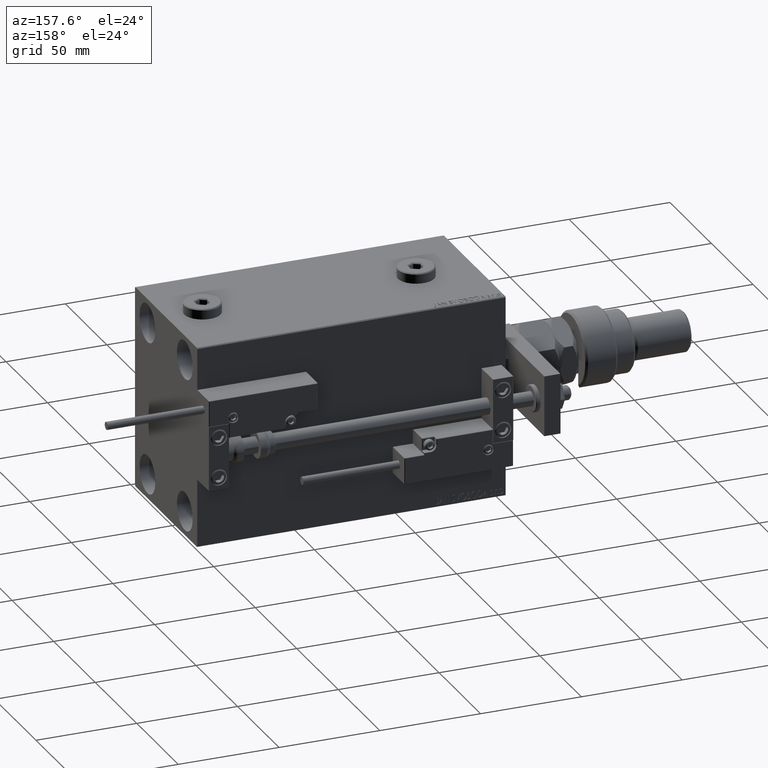
[diagram: clean part render]
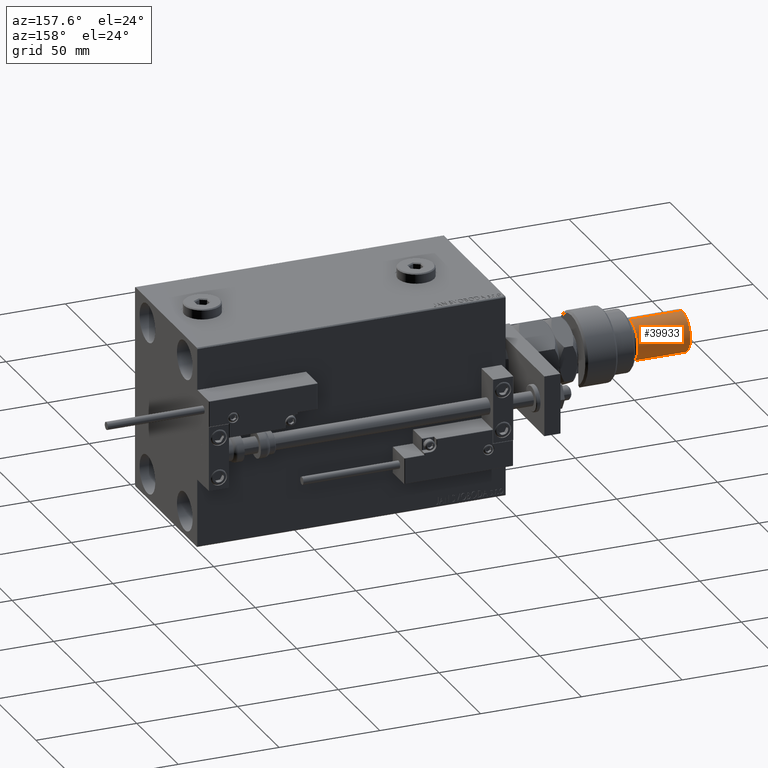
[diagram: same view with one face highlighted and labeled with its STEP entity id]
A machine part, auxiliary view. The second image highlights one B-rep face of the part: STEP entity #39933.
In plain terms, the highlighted cylindrical surface (edge-blend (fillet) strip) has radius 10 mm, axis along (1, -0, -0).
Its self-contained STEP definition (entity closure, byte-faithful):
#472 = ORIENTED_EDGE ( 'NONE', *, *, #33613, .T. ) ;
#792 = DIRECTION ( 'NONE',  ( -0.000000000000000000, -0.000000000000000000, -1.000000000000000000 ) ) ;
#1743 = AXIS2_PLACEMENT_3D ( 'NONE', #29439, #7391, #3246 ) ;
#3246 = DIRECTION ( 'NONE',  ( 1.000000000000000000, 0.000000000000000000, 0.000000000000000000 ) ) ;
#3326 = AXIS2_PLACEMENT_3D ( 'NONE', #22070, #21791, #42455 ) ;
#5194 = LINE ( 'NONE', #38534, #32366 ) ;
#6332 = ORIENTED_EDGE ( 'NONE', *, *, #7644, .T. ) ;
#7391 = DIRECTION ( 'NONE',  ( 0.000000000000000000, 0.000000000000000000, -1.000000000000000000 ) ) ;
#7644 = EDGE_CURVE ( 'NONE', #21336, #18924, #23510, .T. ) ;
#8090 = FACE_OUTER_BOUND ( 'NONE', #52193, .T. ) ;
#8902 = CARTESIAN_POINT ( 'NONE',  ( 10.00000000000000000, 1.224646799147353256E-15, 54.99999999999998579 ) ) ;
#16626 = DIRECTION ( 'NONE',  ( -1.000000000000000000, 0.000000000000000000, 0.000000000000000000 ) ) ;
#17830 = AXIS2_PLACEMENT_3D ( 'NONE', #29571, #29039, #16626 ) ;
#18924 = VERTEX_POINT ( 'NONE', #43433 ) ;
#21336 = VERTEX_POINT ( 'NONE', #8902 ) ;
#21791 = DIRECTION ( 'NONE',  ( -0.000000000000000000, -0.000000000000000000, 1.000000000000000000 ) ) ;
#22070 = CARTESIAN_POINT ( 'NONE',  ( 0.000000000000000000, 0.000000000000000000, 29.00000000000000711 ) ) ;
#23510 = LINE ( 'NONE', #40301, #38668 ) ;
#24814 = EDGE_CURVE ( 'NONE', #27943, #32057, #5194, .T. ) ;
#27088 = CIRCLE ( 'NONE', #3326, 10.00000000000000000 ) ;
#27943 = VERTEX_POINT ( 'NONE', #44417 ) ;
#29039 = DIRECTION ( 'NONE',  ( -0.000000000000000000, -0.000000000000000000, -1.000000000000000000 ) ) ;
#29439 = CARTESIAN_POINT ( 'NONE',  ( 0.000000000000000000, 0.000000000000000000, 54.99999999999998579 ) ) ;
#29571 = CARTESIAN_POINT ( 'NONE',  ( 0.000000000000000000, 0.000000000000000000, 56.00000000000000711 ) ) ;
#30114 = ORIENTED_EDGE ( 'NONE', *, *, #24814, .F. ) ;
#32057 = VERTEX_POINT ( 'NONE', #53778 ) ;
#32366 = VECTOR ( 'NONE', #792, 1000.000000000000000 ) ;
#33613 = EDGE_CURVE ( 'NONE', #27943, #21336, #37868, .T. ) ;
#34899 = ORIENTED_EDGE ( 'NONE', *, *, #53003, .T. ) ;
#36162 = DIRECTION ( 'NONE',  ( -0.000000000000000000, -0.000000000000000000, -1.000000000000000000 ) ) ;
#37868 = CIRCLE ( 'NONE', #1743, 10.00000000000000000 ) ;
#38534 = CARTESIAN_POINT ( 'NONE',  ( -10.00000000000000000, 0.000000000000000000, 56.00000000000000711 ) ) ;
#38668 = VECTOR ( 'NONE', #36162, 1000.000000000000000 ) ;
#39933 = ADVANCED_FACE ( 'NONE', ( #8090 ), #50788, .T. ) ;
#40301 = CARTESIAN_POINT ( 'NONE',  ( 10.00000000000000000, 1.224646799147353256E-15, 56.00000000000000711 ) ) ;
#42455 = DIRECTION ( 'NONE',  ( 1.000000000000000000, 0.000000000000000000, 0.000000000000000000 ) ) ;
#43433 = CARTESIAN_POINT ( 'NONE',  ( 10.00000000000000000, 1.224646799147353256E-15, 29.00000000000000711 ) ) ;
#44417 = CARTESIAN_POINT ( 'NONE',  ( -10.00000000000000000, 0.000000000000000000, 54.99999999999998579 ) ) ;
#50788 = CYLINDRICAL_SURFACE ( 'NONE', #17830, 10.00000000000000000 ) ;
#52193 = EDGE_LOOP ( 'NONE', ( #472, #6332, #34899, #30114 ) ) ;
#53003 = EDGE_CURVE ( 'NONE', #18924, #32057, #27088, .T. ) ;
#53778 = CARTESIAN_POINT ( 'NONE',  ( -10.00000000000000000, 0.000000000000000000, 29.00000000000000711 ) ) ;